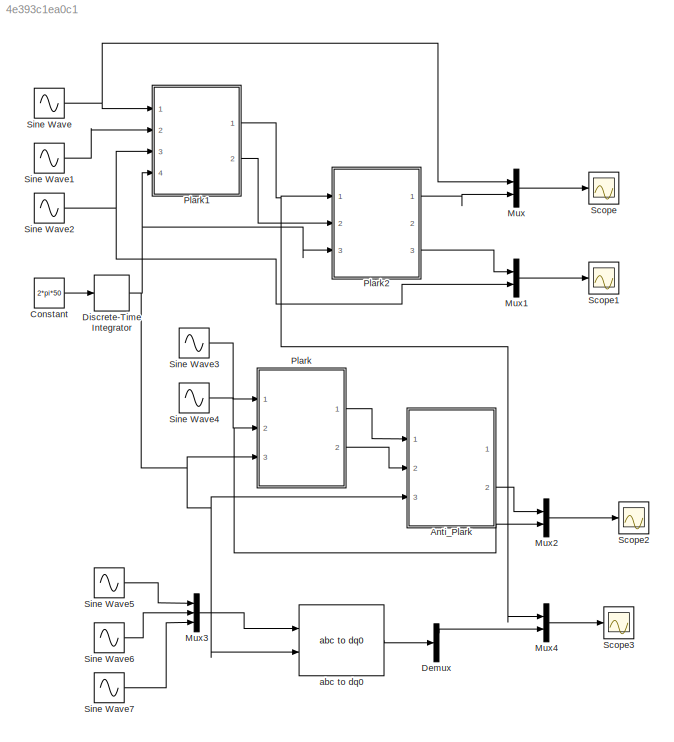
MODEL slx_4e393c1ea0c1
KIND model
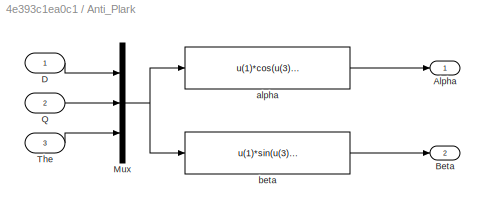
BLOCK [SubSystem] Anti_Plark
  Ports = [3, 2]
  RequestExecContextInheritance = off
BLOCK [Outport] Anti_Plark/Alpha
  IconDisplay = Port number
BLOCK [Outport] Anti_Plark/Beta
  IconDisplay = Port number
  Port = 2
BLOCK [Inport] Anti_Plark/D
  IconDisplay = Port number
BLOCK [Mux] Anti_Plark/Mux
  DisplayOption = bar
  Inputs = 3
  Ports = [3, 1]
BLOCK [Inport] Anti_Plark/Q
  IconDisplay = Port number
  Port = 2
BLOCK [Inport] Anti_Plark/The
  IconDisplay = Port number
  Port = 3
BLOCK [Fcn] Anti_Plark/alpha
  Expr = u(1)*cos(u(3))-u(2)*sin(u(3))
BLOCK [Fcn] Anti_Plark/beta
  Expr = u(1)*sin(u(3))+u(2)*cos(u(3))
BLOCK [Constant] Constant
  Value = 2*pi*50
BLOCK [Demux] Demux
  DisplayOption = bar
  Outputs = 3
  Ports = [1, 3]
BLOCK [DiscreteIntegrator] Discrete-Time Integrator
  InitialConditionSetting = State (most efficient)
  Ports = [1, 1]
  SampleTime = 10e-6
BLOCK [Mux] Mux
  DisplayOption = bar
  Inputs = 2
  Ports = [2, 1]
BLOCK [Mux] Mux1
  DisplayOption = bar
  Inputs = 2
  Ports = [2, 1]
BLOCK [Mux] Mux2
  DisplayOption = bar
  Inputs = 2
  Ports = [2, 1]
BLOCK [Mux] Mux3
  DisplayOption = bar
  Inputs = 3
  Ports = [3, 1]
BLOCK [Mux] Mux4
  DisplayOption = bar
  Inputs = 2
  Ports = [2, 1]
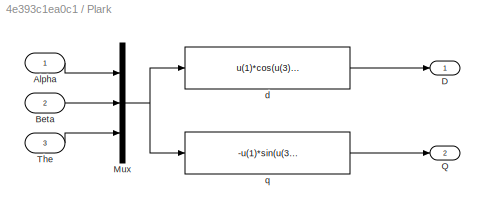
BLOCK [SubSystem] Plark
  Ports = [3, 2]
  RequestExecContextInheritance = off
BLOCK [Inport] Plark/Alpha
  IconDisplay = Port number
BLOCK [Inport] Plark/Beta
  IconDisplay = Port number
  Port = 2
BLOCK [Outport] Plark/D
  IconDisplay = Port number
BLOCK [Mux] Plark/Mux
  DisplayOption = bar
  Inputs = 3
  Ports = [3, 1]
BLOCK [Outport] Plark/Q
  IconDisplay = Port number
  Port = 2
BLOCK [Inport] Plark/The
  IconDisplay = Port number
  Port = 3
BLOCK [Fcn] Plark/d
  Expr = u(1)*cos(u(3))+u(2)*sin(u(3))
BLOCK [Fcn] Plark/q
  Expr = -u(1)*sin(u(3))+u(2)*cos(u(3))
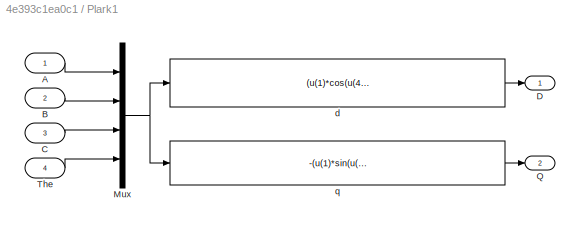
BLOCK [SubSystem] Plark1
  Ports = [4, 2]
  RequestExecContextInheritance = off
BLOCK [Inport] Plark1/A
  IconDisplay = Port number
BLOCK [Inport] Plark1/B
  IconDisplay = Port number
  Port = 2
BLOCK [Inport] Plark1/C
  IconDisplay = Port number
  Port = 3
BLOCK [Outport] Plark1/D
  IconDisplay = Port number
BLOCK [Mux] Plark1/Mux
  DisplayOption = bar
  Ports = [4, 1]
BLOCK [Outport] Plark1/Q
  IconDisplay = Port number
  Port = 2
BLOCK [Inport] Plark1/The
  IconDisplay = Port number
  Port = 4
BLOCK [Fcn] Plark1/d
  Expr = (u(1)*cos(u(4))+u(2)*cos(u(4)-2/3*pi)+u(3)*cos(u(4)+2/3*pi))*2/3
BLOCK [Fcn] Plark1/q
  Expr = -(u(1)*sin(u(4))+u(2)*sin(u(4)-2/3*pi)+u(3)*sin(u(4)+2/3*pi))*2/3
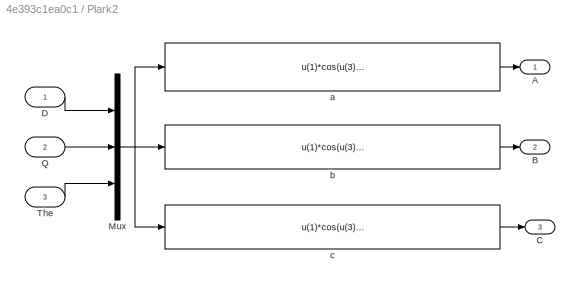
BLOCK [SubSystem] Plark2
  Ports = [3, 3]
  RequestExecContextInheritance = off
BLOCK [Outport] Plark2/A
  IconDisplay = Port number
BLOCK [Outport] Plark2/B
  IconDisplay = Port number
  Port = 2
BLOCK [Outport] Plark2/C
  IconDisplay = Port number
  Port = 3
BLOCK [Inport] Plark2/D
  IconDisplay = Port number
BLOCK [Mux] Plark2/Mux
  DisplayOption = bar
  Inputs = 3
  Ports = [3, 1]
BLOCK [Inport] Plark2/Q
  IconDisplay = Port number
  Port = 2
BLOCK [Inport] Plark2/The
  IconDisplay = Port number
  Port = 3
BLOCK [Fcn] Plark2/a
  Expr = u(1)*cos(u(3))-u(2)*sin(u(3))
BLOCK [Fcn] Plark2/b
  Expr = u(1)*cos(u(3)-2/3*pi)-u(2)*sin(u(3)-2/3*pi)
BLOCK [Fcn] Plark2/c
  Expr = u(1)*cos(u(3)+2/3*pi)-u(2)*sin(u(3)+2/3*pi)
BLOCK [Scope] Scope
  Floating = off
  LimitDataPoints = off
  NumInputPorts = 1
  Ports = [1]
  ShowLegends = off
  YMax = 150
  YMin = -150
  ZoomMode = xonly
BLOCK [Scope] Scope1
  Floating = off
  LegendLocations = 0.5258     0.72226     0.35589     0.13408
  LimitDataPoints = off
  NumInputPorts = 1
  Ports = [1]
  SaveName = ScopeData1
  ShowLegends = on
  YMax = 150
  YMin = -150
  ZoomMode = xonly
BLOCK [Scope] Scope2
  Floating = off
  LimitDataPoints = off
  NumInputPorts = 1
  Ports = [1]
  SaveName = ScopeData2
  ShowLegends = on
  YMax = 150
  YMin = -150
  ZoomMode = xonly
BLOCK [Scope] Scope3
  Floating = off
  LegendLocations = 0.57014     0.67135     0.25004     0.11782
  LimitDataPoints = off
  NumInputPorts = 1
  Ports = [1]
  SaveName = ScopeData3
  ShowLegends = on
  YMax = 150
  YMin = -150
  ZoomMode = xonly
BLOCK [Sin] Sine Wave
  Amplitude = 100
  Frequency = 2*pi*50
  Ports = [0, 1]
  SampleTime = 10e-6
BLOCK [Sin] Sine Wave1
  Amplitude = 100
  Frequency = 2*pi*50
  Phase = -2/3*pi
  Ports = [0, 1]
  SampleTime = 10e-6
BLOCK [Sin] Sine Wave2
  Amplitude = 100
  Frequency = 2*pi*50
  Phase = 2/3*pi
  Ports = [0, 1]
  SampleTime = 10e-6
BLOCK [Sin] Sine Wave3
  Amplitude = 100
  Frequency = 2*pi*50
  Ports = [0, 1]
  SampleTime = 10e-6
BLOCK [Sin] Sine Wave4
  Amplitude = 100
  Frequency = 2*pi*50
  Phase = pi/2
  Ports = [0, 1]
  SampleTime = 10e-6
BLOCK [Sin] Sine Wave5
  Amplitude = 100
  Frequency = 2*pi*50
  Ports = [0, 1]
  SampleTime = 10e-6
BLOCK [Sin] Sine Wave6
  Amplitude = 100
  Frequency = 2*pi*50
  Phase = -2/3*pi
  Ports = [0, 1]
  SampleTime = 10e-6
BLOCK [Sin] Sine Wave7
  Amplitude = 100
  Frequency = 2*pi*50
  Phase = 2/3*pi
  Ports = [0, 1]
  SampleTime = 10e-6
BLOCK [Reference] abc to dq0  REF=powerlib_meascontrol/Transformations/abc to dq0
  Alignment = Aligned with phase A axis
  Ports = [2, 1]
  SourceBlock = powerlib_meascontrol/Transformations/abc to dq0
  SourceType = abc to dq0 Transformation
LINE Anti_Plark/D:1 -> Anti_Plark/Mux:1
NET Anti_Plark/Mux:1 -> Anti_Plark/alpha:1, Anti_Plark/beta:1
LINE Anti_Plark/Q:1 -> Anti_Plark/Mux:2
LINE Anti_Plark/The:1 -> Anti_Plark/Mux:3
LINE Anti_Plark/alpha:1 -> Anti_Plark/Alpha:1
LINE Anti_Plark/beta:1 -> Anti_Plark/Beta:1
LINE Anti_Plark:2 -> Mux2:1
LINE Constant:1 -> Discrete-Time Integrator:1
LINE Demux:1 -> Mux4:2
NET Discrete-Time Integrator:1 -> Anti_Plark:3, Plark1:4, Plark2:3, Plark:3, abc to dq0:2
LINE Mux1:1 -> Scope1:1
LINE Mux2:1 -> Scope2:1
LINE Mux3:1 -> abc to dq0:1
LINE Mux4:1 -> Scope3:1
LINE Mux:1 -> Scope:1
LINE Plark/Alpha:1 -> Plark/Mux:1
LINE Plark/Beta:1 -> Plark/Mux:2
NET Plark/Mux:1 -> Plark/d:1, Plark/q:1
LINE Plark/The:1 -> Plark/Mux:3
LINE Plark/d:1 -> Plark/D:1
LINE Plark/q:1 -> Plark/Q:1
LINE Plark1/A:1 -> Plark1/Mux:1
LINE Plark1/B:1 -> Plark1/Mux:2
LINE Plark1/C:1 -> Plark1/Mux:3
NET Plark1/Mux:1 -> Plark1/d:1, Plark1/q:1
LINE Plark1/The:1 -> Plark1/Mux:4
LINE Plark1/d:1 -> Plark1/D:1
LINE Plark1/q:1 -> Plark1/Q:1
NET Plark1:1 -> Mux4:1, Plark2:1
LINE Plark1:2 -> Plark2:2
LINE Plark2/D:1 -> Plark2/Mux:1
NET Plark2/Mux:1 -> Plark2/a:1, Plark2/b:1, Plark2/c:1
LINE Plark2/Q:1 -> Plark2/Mux:2
LINE Plark2/The:1 -> Plark2/Mux:3
LINE Plark2/a:1 -> Plark2/A:1
LINE Plark2/b:1 -> Plark2/B:1
LINE Plark2/c:1 -> Plark2/C:1
LINE Plark2:1 -> Mux:2
LINE Plark2:3 -> Mux1:1
LINE Plark:1 -> Anti_Plark:1
LINE Plark:2 -> Anti_Plark:2
LINE Sine Wave1:1 -> Plark1:2
NET Sine Wave2:1 -> Mux1:2, Plark1:3
LINE Sine Wave3:1 -> Plark:1
NET Sine Wave4:1 -> Mux2:2, Plark:2
LINE Sine Wave5:1 -> Mux3:1
LINE Sine Wave6:1 -> Mux3:2
LINE Sine Wave7:1 -> Mux3:3
NET Sine Wave:1 -> Mux:1, Plark1:1
LINE abc to dq0:1 -> Demux:1
note: NET lines group one-source signal fan-out (src -> all destinations, sorted); 1:1 wires keep LINE
